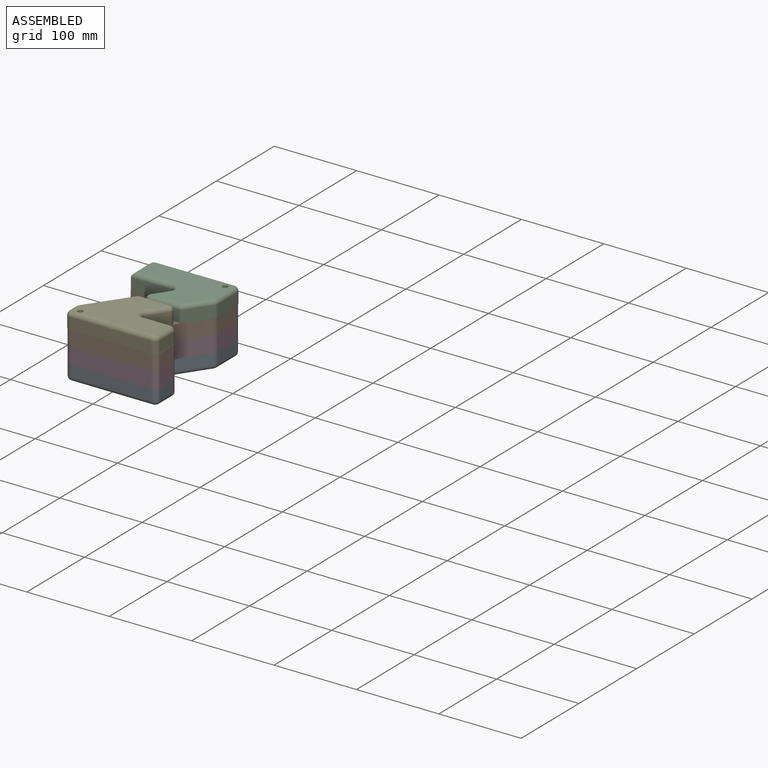
[diagram: assembled view]
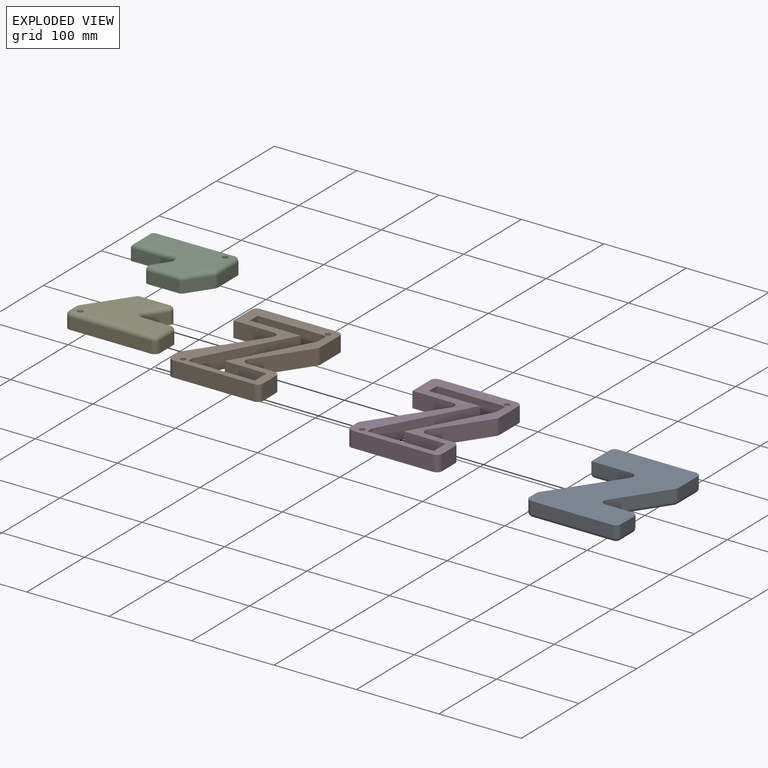
[diagram: exploded view]
GUIDED TOUR — MATED ASSEMBLY (Onshape document b6bfaa9dc01e8448dd5dc00b, AutoMate assembly b6bfaa9dc01e8448dd5dc00b_bda568567a9e28a64f743e2d_ed5f7a123516ab2636de5dbc_default)

This assembly has 5 components, labeled P0..P4 below (a component is one placed occurrence of a part; the same part can appear more than once), held together by 4 mates. A mate is a constraint between two components; its type names the relative motion it leaves free:
  FASTENED — locks the two components together rigidly (no relative motion),
  REVOLUTE — leaves rotation about the listed axis free (a hinge).
Axis/direction vectors are unit vectors and 'through' points are millimeter coordinates, both in the assembly's world frame.

MATES
  1. FASTENED "Fastened 2": P3 <-> P1, direction (1.000, 0.000, 0.000) through (4.86, -75.66, 22.21) mm
  2. FASTENED "Fastened 1": P0 <-> P3, direction (1.000, 0.000, 0.000) through (4.86, -75.66, 3.16) mm
  3. REVOLUTE "Revolute 2": P1 <-> P2, axis (0.000, 0.000, 1.000) through (46.89, 62.49, 41.26) mm
  4. REVOLUTE "Revolute 1": P1 <-> P4, axis (0.000, 0.000, 1.000) through (-37.71, -67.67, 41.26) mm

ASSEMBLY ORDER
  1. P4 — the base component [order verified]
  2. P2 [order verified]
  3. P1 [order verified]
  4. P3 [order verified]
  5. P0 [order verified]
Order-tag legend:
  [order verified] — this step's position reverses a verified removal order: the component was checked to insert without passing through the ones already placed.

Of the 5 components, 3 carry the full construction recipe — the FeatureScript program that regenerates the part's solid from scratch; the rest are supplied as boundary geometry only.
Each toured component is shown spotlighted twice — in the assembled view, then in the exploded view, where a leader line traces a displaced component back to its assembled socket (saturated green if recipe-attached, orange if geometry-only; every other component desaturated gray) — followed by its recipe or geometry summary and the mates that hold it.
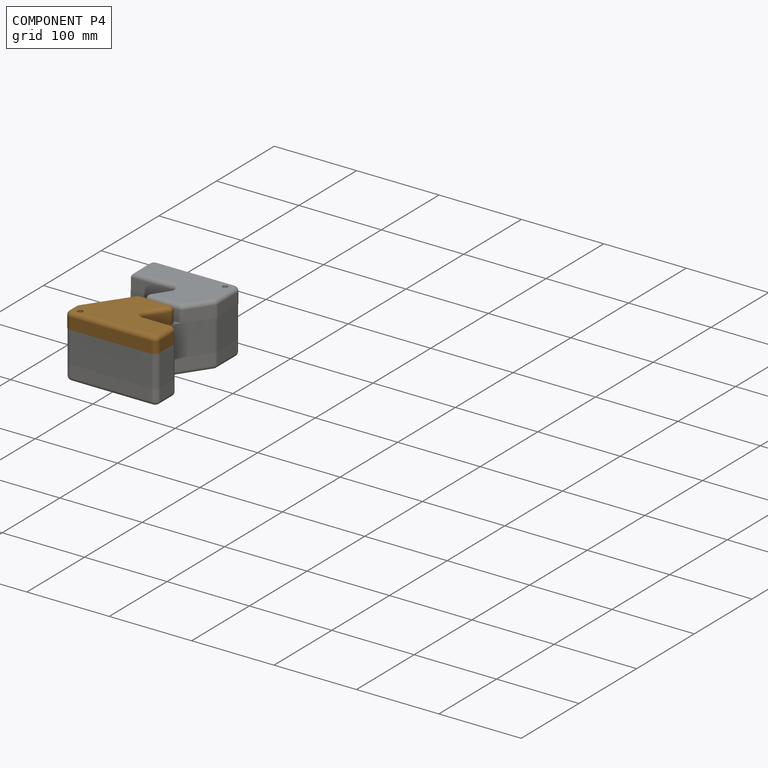
[diagram: component P4 — assembled]
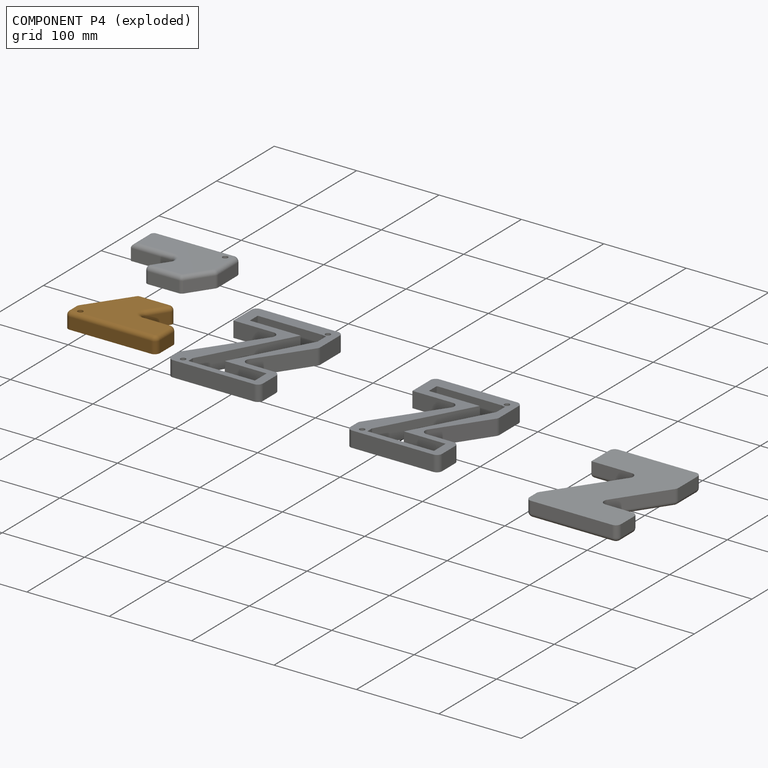
[diagram: component P4 — exploded]
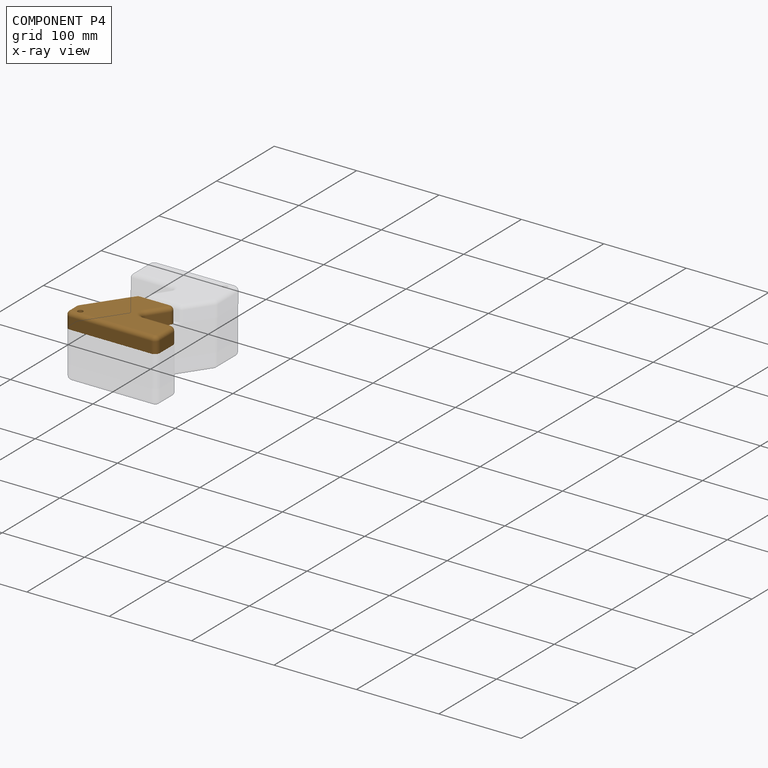
[diagram: component P4 — x-ray view]
COMPONENT P4 — geometry summary (no construction recipe available for this part):
  bounding box: 111.1 x 74.5 x 19.1 mm
  B-rep topology: 1 solid, 31 faces, 144 edges
  volume: 107297 mm^3 (68% of its bounding box)
Held by: REVOLUTE mate "Revolute 1" to P1.
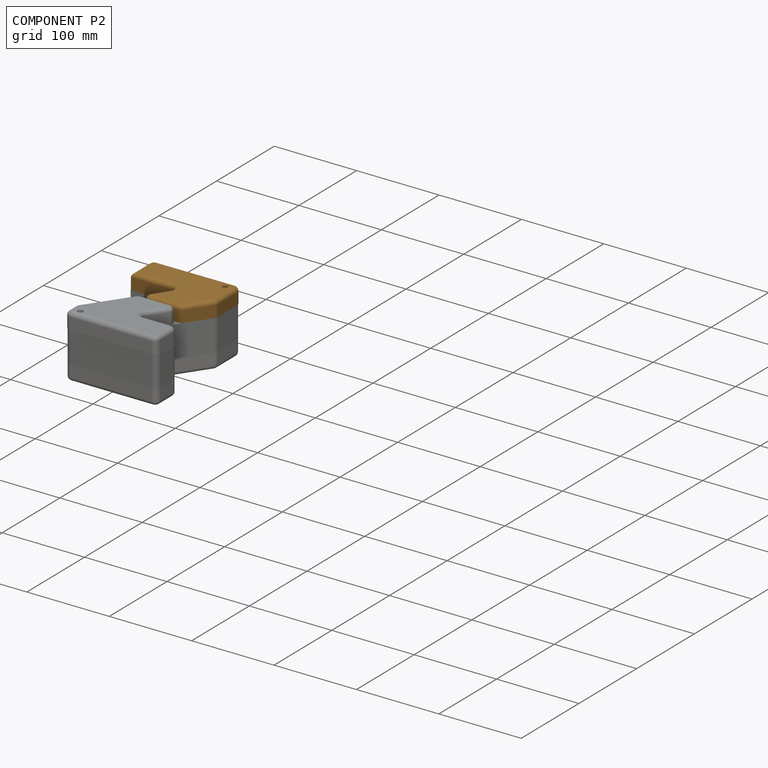
[diagram: component P2 — assembled]
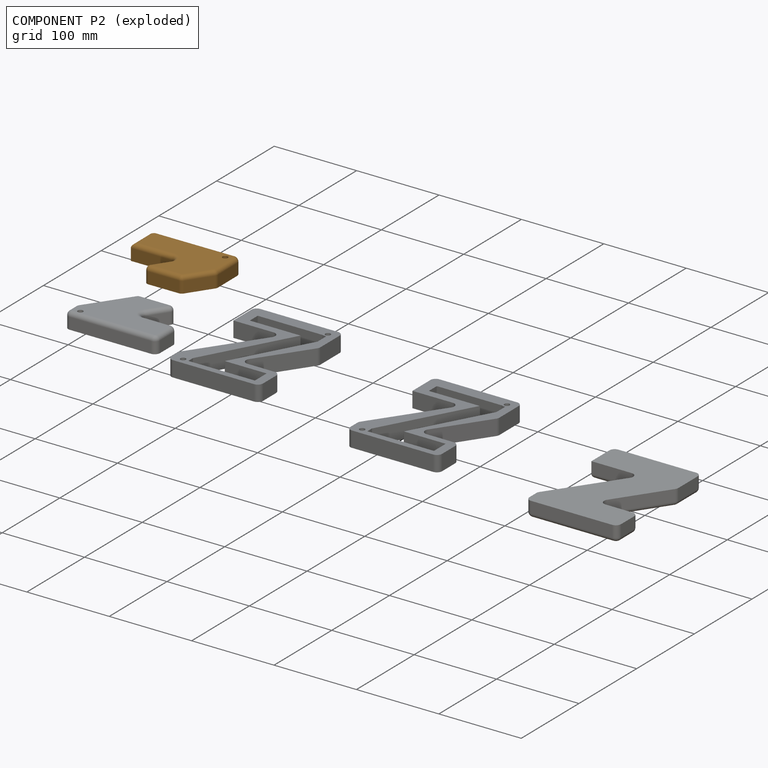
[diagram: component P2 — exploded]
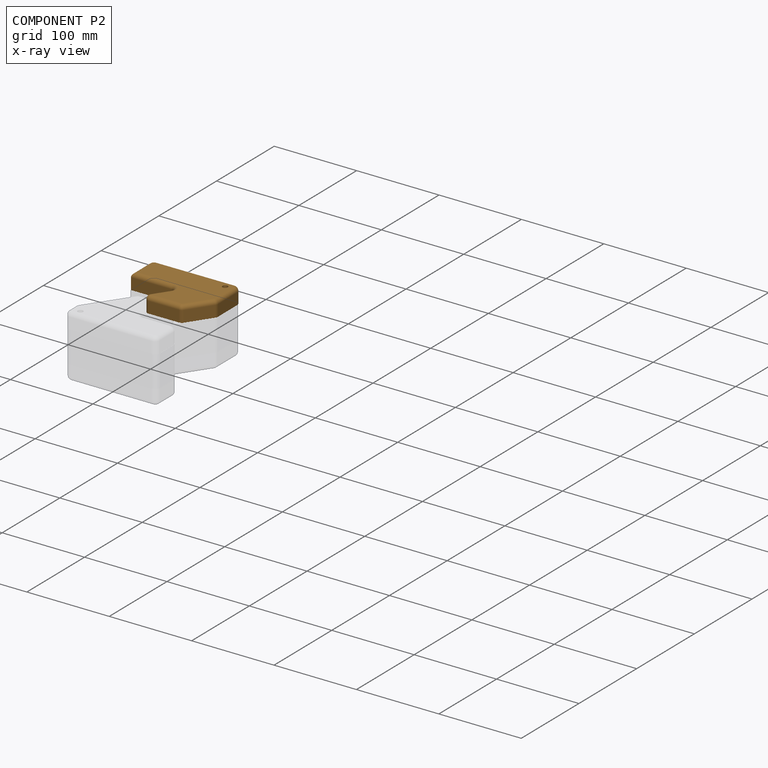
[diagram: component P2 — x-ray view]
COMPONENT P2 — geometry summary (no construction recipe available for this part):
  bounding box: 107.0 x 73.1 x 19.1 mm
  B-rep topology: 1 solid, 29 faces, 134 edges
  volume: 107091 mm^3 (72% of its bounding box)
Held by: REVOLUTE mate "Revolute 2" to P1.
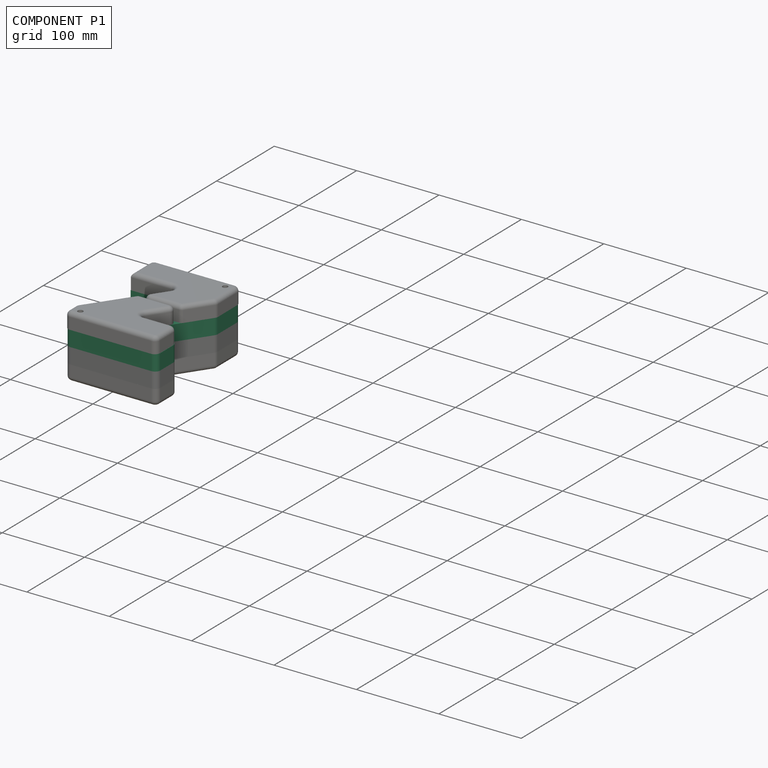
[diagram: component P1 — assembled]
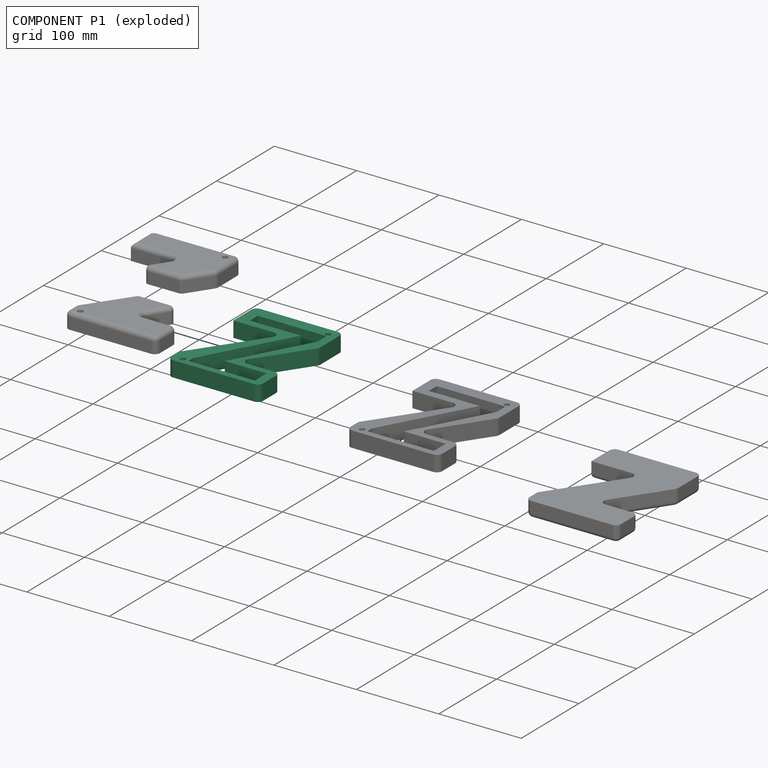
[diagram: component P1 — exploded]
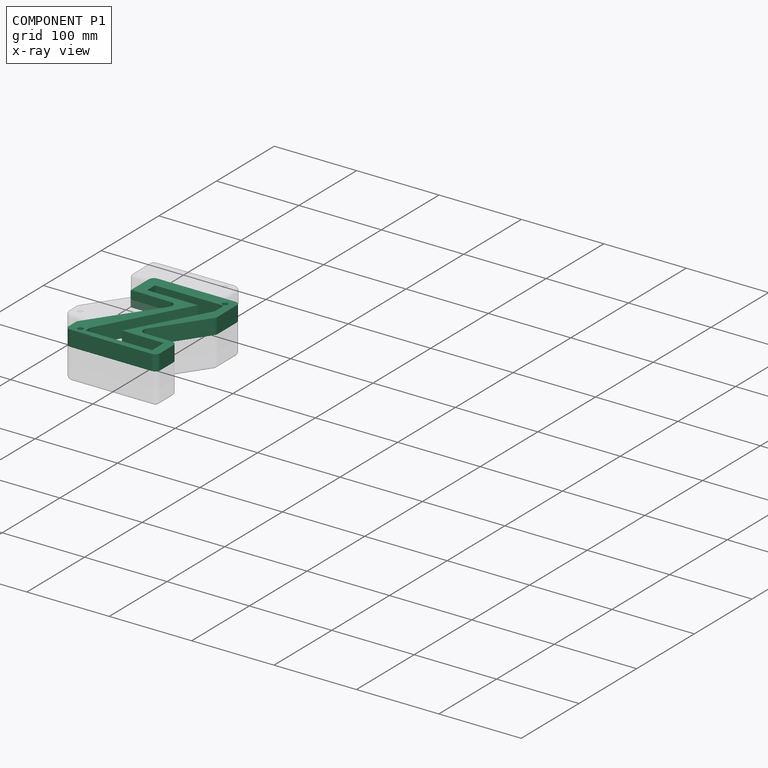
[diagram: component P1 — x-ray view]
COMPONENT P1 — recipe-attached (CADFS 00578789, mesh-verified: the recipe's output STEP matches this component's geometry to below the mesh-comparison resolution (tessellation chordal tolerance ~0.28 mm)).
Held by: FASTENED mate "Fastened 2" to P3; REVOLUTE mate "Revolute 2" to P2; REVOLUTE mate "Revolute 1" to P4.
Construction recipe (FeatureScript — the CAD program that rebuilds this solid; sketch coordinates are in the units given by the * unit suffixes, e.g. mm):

FeatureScript 1540;
import(path : "onshape/std/geometry.fs", version : "1540.0");
import(path : "onshape/std/common.fs", version : "1540.0");
const mm = millimeter;
const VERTEX = EntityType.VERTEX;
const EDGE = EntityType.EDGE;
const FACE = EntityType.FACE;
const BODY = EntityType.BODY;
function v(x, y){return vector(x, y);}
function OD(order){return orderDisambiguation(order);}
function OSD(set){return originalSetDisambiguation(set);}
function TD(topology){return topologyDisambiguation(topology);}
function TDD(query){return trueDependencyDisambiguation(query);}
function sQuery(a, b, c) {return sketchEntityQuery(a, b, c);}

annotation { "Feature Type Name" : "Feature", "Feature Type Description" : "" }
export const myFeature = defineFeature(function(context is Context, id is Id, definition is map)
    precondition{}
    {
        {
            var Q0;
            Q0=qCreatedBy(makeId("Top.planeOp"),FACE);
            var sketch = newSketch(context, id + "F0", { "sketchPlane" : qUnion([Q0])});
            skText(sketch, "E0", { "text": "Z", "fontName": "OpenSans-Bold.ttf"});
            skLineSegment(sketch, "E1", {"start": v(-54.55, 77.63) * mm, "end": v(-54.55, 38.1) * mm});
            skLineSegment(sketch, "E2", {"start": v(-54.55, 38.1) * mm, "end": v(-5.8, 38.1) * mm});
            skLineSegment(sketch, "E3", {"start": v(-0.58, 28.14) * mm, "end": v(-55.35, -50.87) * mm});
            skLineSegment(sketch, "E4", {"start": v(-56.48, -54.49) * mm, "end": v(-56.48, -66.4) * mm});
            skLineSegment(sketch, "E5", {"start": v(-50.13, -72.75) * mm, "end": v(48.27, -72.75) * mm});
            skLineSegment(sketch, "E6", {"start": v(54.62, -66.4) * mm, "end": v(54.62, -43.67) * mm});
            skLineSegment(sketch, "E7", {"start": v(48.27, -37.32) * mm, "end": v(15.52, -37.32) * mm});
            skLineSegment(sketch, "E8", {"start": v(10.29, -27.38) * mm, "end": v(51.33, 32.37) * mm});
            skLineSegment(sketch, "E9", {"start": v(52.45, 35.97) * mm, "end": v(52.45, 69.35) * mm});
            skLineSegment(sketch, "E10", {"start": v(46.1, 75.7) * mm, "end": v(-48.2, 75.7) * mm});
            skLineSegment(sketch, "E11", {"start": v(-54.55, 69.35) * mm, "end": v(-54.55, 38.1) * mm});
            skPoint(sketch, "E12.visualSharp", {"position": v(-54.55, 75.7) * mm});
            skArc(sketch, "E12.filletArc", {"start": v(-48.2, 75.7) * mm, "mid": v(-52.7, 73.84) * mm, "end": v(-54.55, 69.35) * mm});
            skPoint(sketch, "E13.visualSharp", {"position": v(6.33, 38.1) * mm});
            skArc(sketch, "E13.filletArc", {"start": v(-0.58, 28.14) * mm, "mid": v(-0.17, 34.7) * mm, "end": v(-5.8, 38.1) * mm});
            skPoint(sketch, "E14.visualSharp", {"position": v(-56.48, -52.5) * mm});
            skArc(sketch, "E14.filletArc", {"start": v(-55.35, -50.87) * mm, "mid": v(-56.2, -52.6) * mm, "end": v(-56.48, -54.49) * mm});
            skPoint(sketch, "E15.visualSharp", {"position": v(-56.48, -72.75) * mm});
            skArc(sketch, "E15.filletArc", {"start": v(-56.48, -66.4) * mm, "mid": v(-54.62, -70.89) * mm, "end": v(-50.13, -72.75) * mm});
            skPoint(sketch, "E16.visualSharp", {"position": v(54.62, -72.75) * mm});
            skArc(sketch, "E16.filletArc", {"start": v(48.27, -72.75) * mm, "mid": v(52.76, -70.89) * mm, "end": v(54.62, -66.4) * mm});
            skPoint(sketch, "E17.visualSharp", {"position": v(54.62, -37.32) * mm});
            skArc(sketch, "E17.filletArc", {"start": v(54.62, -43.67) * mm, "mid": v(52.76, -39.18) * mm, "end": v(48.27, -37.32) * mm});
            skPoint(sketch, "E18.visualSharp", {"position": v(3.46, -37.32) * mm});
            skArc(sketch, "E18.filletArc", {"start": v(10.29, -27.38) * mm, "mid": v(9.9, -33.93) * mm, "end": v(15.52, -37.32) * mm});
            skPoint(sketch, "E19.visualSharp", {"position": v(52.45, 34) * mm});
            skArc(sketch, "E19.filletArc", {"start": v(51.33, 32.37) * mm, "mid": v(52.16, 34.09) * mm, "end": v(52.45, 35.97) * mm});
            skPoint(sketch, "E20.visualSharp", {"position": v(52.45, 75.7) * mm});
            skArc(sketch, "E20.filletArc", {"start": v(52.45, 69.35) * mm, "mid": v(50.59, 73.84) * mm, "end": v(46.1, 75.7) * mm});
            skLineSegment(sketch, "E21", {"start": v(-54.55, 75.7) * mm, "end": v(-54.55, 38.1) * mm});
            const initialGuessF0  = {"E0": [-0.06154, -0.07275, 1, 0, 0.15038]};
            skSetInitialGuess(sketch, initialGuessF0);
            skSolve(sketch);
        }
        {
            var Q0;
            {var subQ5=sQuery(id+"F0.wireOp",EDGE,"E2");Q0=makeQuery(id+"F0.imprint","IMPRINT",FACE,{"disambiguationData":[TD([[makeQuery(id+"F0.imprint","IMPRINT",EDGE,{"derivedFrom":subQ5}),1.0]])]});}
            var Q1;
            {var subQ6=sQuery(id+"F0.wireOp",EDGE,"E0.sketch_text.stroke-8");Q1=makeQuery(id+"F0.imprint","IMPRINT",FACE,{"disambiguationData":[TD([[makeQuery(id+"F0.imprint","IMPRINT",EDGE,{"derivedFrom":subQ6}),-1.0]])]});}
            var Q2;
            {var subQ0=sQuery(id+"F0.wireOp",EDGE,"E0.sketch_text.stroke-8");Q2=makeQuery(id+"F0.imprint","IMPRINT",FACE,{"disambiguationData":[TD([[makeQuery(id+"F0.imprint","IMPRINT",EDGE,{"derivedFrom":subQ0}),1.0]])]});}
            extrude(context, id + "F1", {"entities" : qUnion([Q0, Q1, Q2]), "depth" : 19.05 * mm, "offsetDistance" : 25.4 * mm});
        }
        {
            var Q0;
            Q0=makeQuery(id+"F1.opExtrude","CAP_FACE",FACE,{"disambiguationData":[OSD([sQuery(id+"F0.wireOp",EDGE,"E2"),sQuery(id+"F0.wireOp",EDGE,"E3"),sQuery(id+"F0.wireOp",EDGE,"E4"),sQuery(id+"F0.wireOp",EDGE,"E5"),sQuery(id+"F0.wireOp",EDGE,"E6"),sQuery(id+"F0.wireOp",EDGE,"E7"),sQuery(id+"F0.wireOp",EDGE,"E8"),sQuery(id+"F0.wireOp",EDGE,"E9"),sQuery(id+"F0.wireOp",EDGE,"E10"),sQuery(id+"F0.wireOp",EDGE,"E12.filletArc"),sQuery(id+"F0.wireOp",EDGE,"E13.filletArc"),sQuery(id+"F0.wireOp",EDGE,"E14.filletArc"),sQuery(id+"F0.wireOp",EDGE,"E15.filletArc"),sQuery(id+"F0.wireOp",EDGE,"E16.filletArc"),sQuery(id+"F0.wireOp",EDGE,"E17.filletArc"),sQuery(id+"F0.wireOp",EDGE,"E18.filletArc"),sQuery(id+"F0.wireOp",EDGE,"E19.filletArc"),sQuery(id+"F0.wireOp",EDGE,"E20.filletArc"),sQuery(id+"F0.wireOp",EDGE,"E21")])],"isStart":false});
            var sketch = newSketch(context, id + "F2", { "sketchPlane" : qUnion([Q0])});
            skLineSegment(sketch, "E22", {"start": v(-54.62, -70.89) * mm, "end": v(-43.5, -64.75) * mm});
            skLineSegment(sketch, "E23", {"start": v(50.59, 73.84) * mm, "end": v(41.1, 65.4) * mm});
            skCircle(sketch, "E24", {"center": v(41.1, 65.4) * mm, "radius": 3.17 * mm});
            skCircle(sketch, "E25", {"center": v(-43.5, -64.75) * mm, "radius": 3.18 * mm});
            skSolve(sketch);
        }
        {
            var Q0;
            Q0=makeQuery(id+"F2.imprint","IMPRINT",FACE,{"disambiguationData":[TD([[makeQuery(id+"F2.imprint","IMPRINT",EDGE,{"derivedFrom":sQuery(id+"F2.wireOp",EDGE,"E24")}),1.0]])]});
            var Q1;
            Q1=makeQuery(id+"F2.imprint","IMPRINT",FACE,{"disambiguationData":[TD([[makeQuery(id+"F2.imprint","IMPRINT",EDGE,{"derivedFrom":sQuery(id+"F2.wireOp",EDGE,"E25")}),1.0]])]});
            extrude(context, id + "F3", {"entities" : qUnion([Q0, Q1]), "operationType" : NewBodyOperationType.REMOVE, "oppositeDirection" : true, "depth" : 25.4 * mm, "offsetDistance" : 25.4 * mm});
        }
        {
            var Q0;
            Q0=makeQuery(id+"F1.opExtrude","CAP_FACE",FACE,{"disambiguationData":[OSD([sQuery(id+"F0.wireOp",EDGE,"E2"),sQuery(id+"F0.wireOp",EDGE,"E3"),sQuery(id+"F0.wireOp",EDGE,"E4"),sQuery(id+"F0.wireOp",EDGE,"E5"),sQuery(id+"F0.wireOp",EDGE,"E6"),sQuery(id+"F0.wireOp",EDGE,"E7"),sQuery(id+"F0.wireOp",EDGE,"E8"),sQuery(id+"F0.wireOp",EDGE,"E9"),sQuery(id+"F0.wireOp",EDGE,"E10"),sQuery(id+"F0.wireOp",EDGE,"E12.filletArc"),sQuery(id+"F0.wireOp",EDGE,"E13.filletArc"),sQuery(id+"F0.wireOp",EDGE,"E14.filletArc"),sQuery(id+"F0.wireOp",EDGE,"E15.filletArc"),sQuery(id+"F0.wireOp",EDGE,"E16.filletArc"),sQuery(id+"F0.wireOp",EDGE,"E17.filletArc"),sQuery(id+"F0.wireOp",EDGE,"E18.filletArc"),sQuery(id+"F0.wireOp",EDGE,"E19.filletArc"),sQuery(id+"F0.wireOp",EDGE,"E20.filletArc"),sQuery(id+"F0.wireOp",EDGE,"E21")])],"isStart":false});
            var sketch = newSketch(context, id + "F4", { "sketchPlane" : qUnion([Q0])});
            skLineSegment(sketch, "E26", {"start": v(37, 61.1) * mm, "end": v(-41.09, 61.1) * mm});
            skLineSegment(sketch, "E27", {"start": v(-41.09, 61.1) * mm, "end": v(-41.09, 47.36) * mm});
            skLineSegment(sketch, "E28", {"start": v(-41.09, 47.36) * mm, "end": v(20.6, 47.36) * mm});
            skLineSegment(sketch, "E29", {"start": v(20.6, 47.36) * mm, "end": v(-36.75, -57.48) * mm});
            skLineSegment(sketch, "E30", {"start": v(-36.75, -57.48) * mm, "end": v(-36.75, -65.43) * mm});
            skLineSegment(sketch, "E31", {"start": v(-36.75, -65.43) * mm, "end": v(43.98, -65.43) * mm});
            skLineSegment(sketch, "E32", {"start": v(43.98, -65.43) * mm, "end": v(43.98, -44.95) * mm});
            skLineSegment(sketch, "E33", {"start": v(43.98, -44.95) * mm, "end": v(-6.87, -44.95) * mm});
            skLineSegment(sketch, "E34", {"start": v(-6.87, -44.95) * mm, "end": v(42.47, 45.22) * mm});
            skLineSegment(sketch, "E35", {"start": v(42.47, 45.22) * mm, "end": v(42.47, 60.13) * mm});
            skLineSegment(sketch, "E36", {"start": v(42.47, 60.13) * mm, "end": v(37, 61.1) * mm});
            skSolve(sketch);
        }
        {
            var Q0;
            Q0 = qSketchRegion(id + "F4", true);
            extrude(context, id + "F5", {"entities" : qUnion([Q0]), "operationType" : NewBodyOperationType.REMOVE, "endBound" : BoundingType.THROUGH_ALL, "oppositeDirection" : true, "depth" : 25.4 * mm, "offsetDistance" : 25.4 * mm});
        }
    });
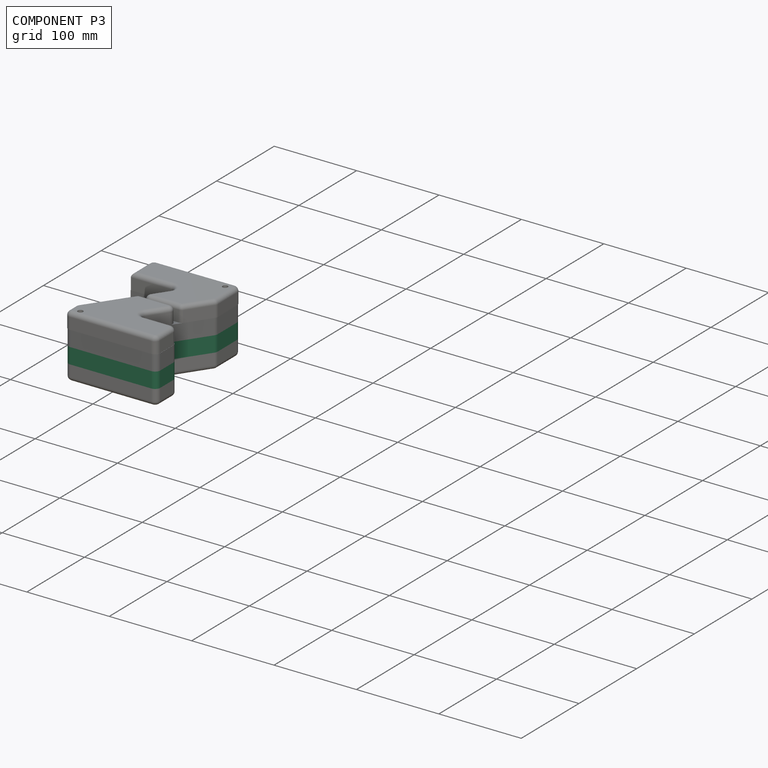
[diagram: component P3 — assembled]
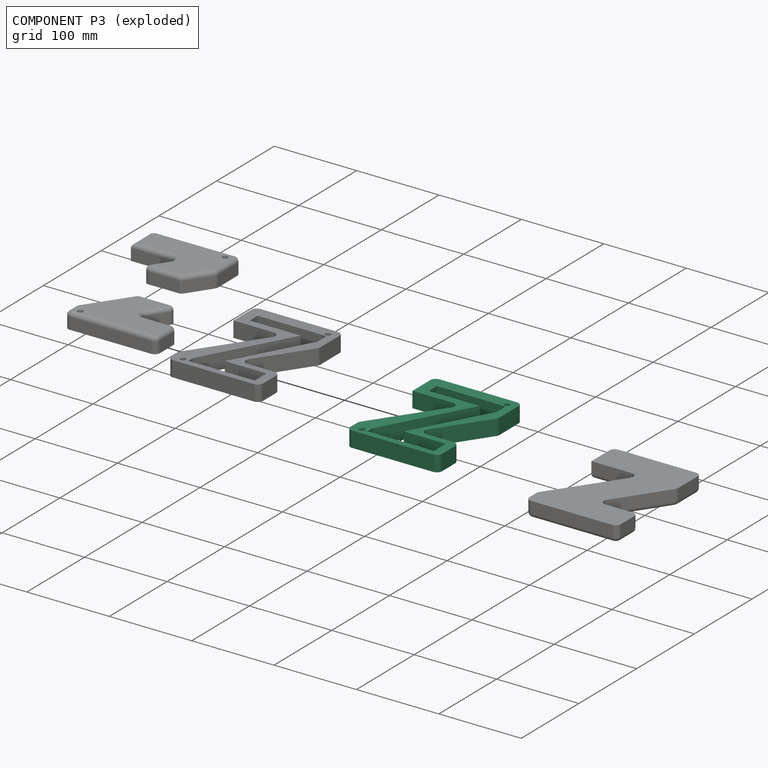
[diagram: component P3 — exploded]
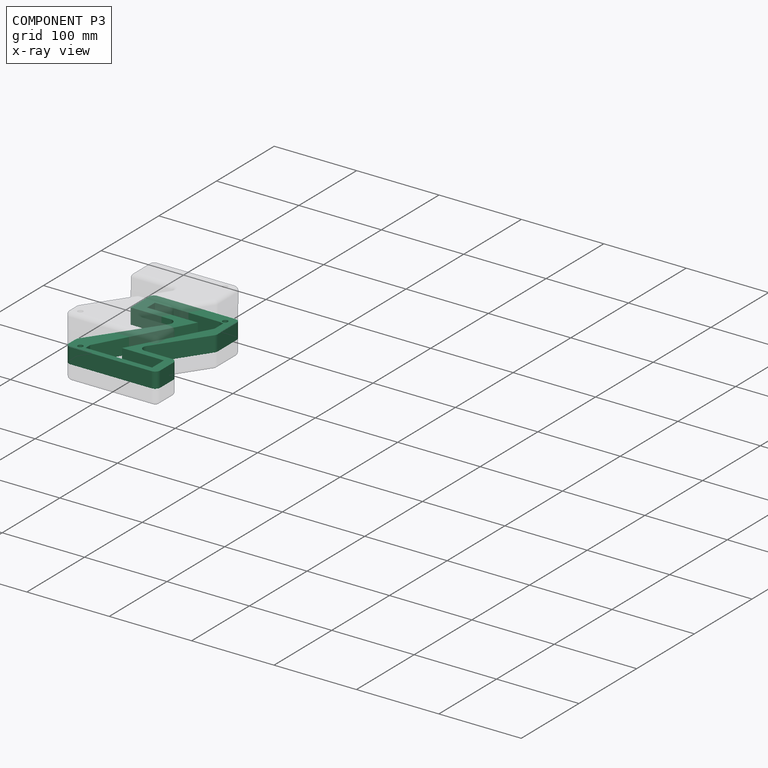
[diagram: component P3 — x-ray view]
COMPONENT P3 — same part as P1 (CADFS 00578789); its construction recipe is shown at P1.
Held by: FASTENED mate "Fastened 2" to P1; FASTENED mate "Fastened 1" to P0.
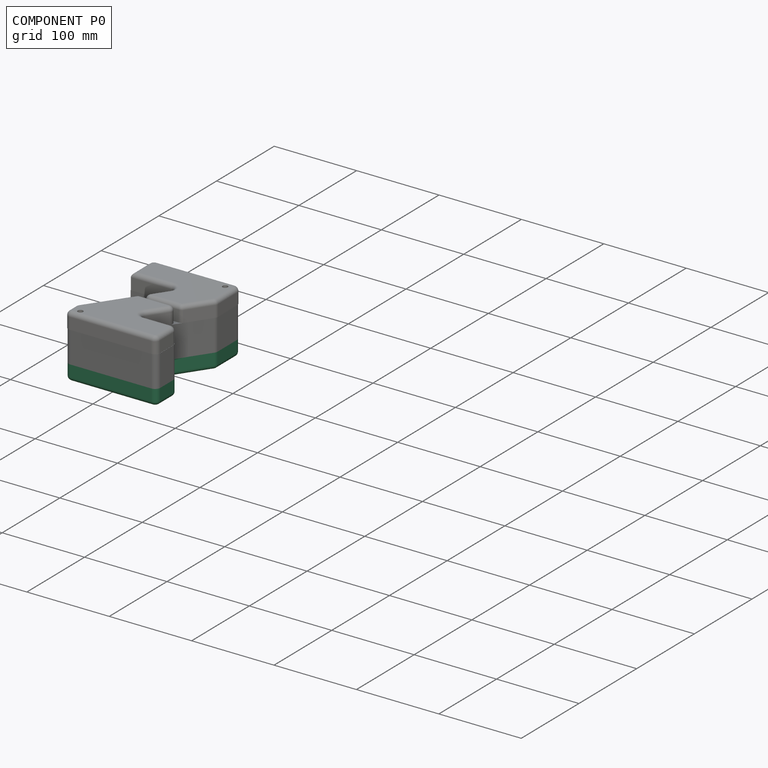
[diagram: component P0 — assembled]
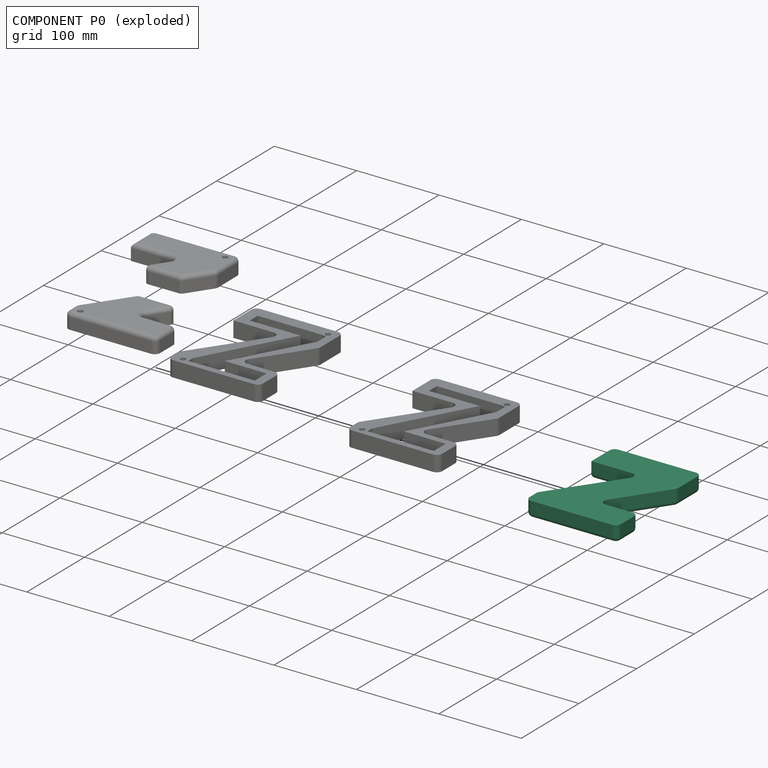
[diagram: component P0 — exploded]
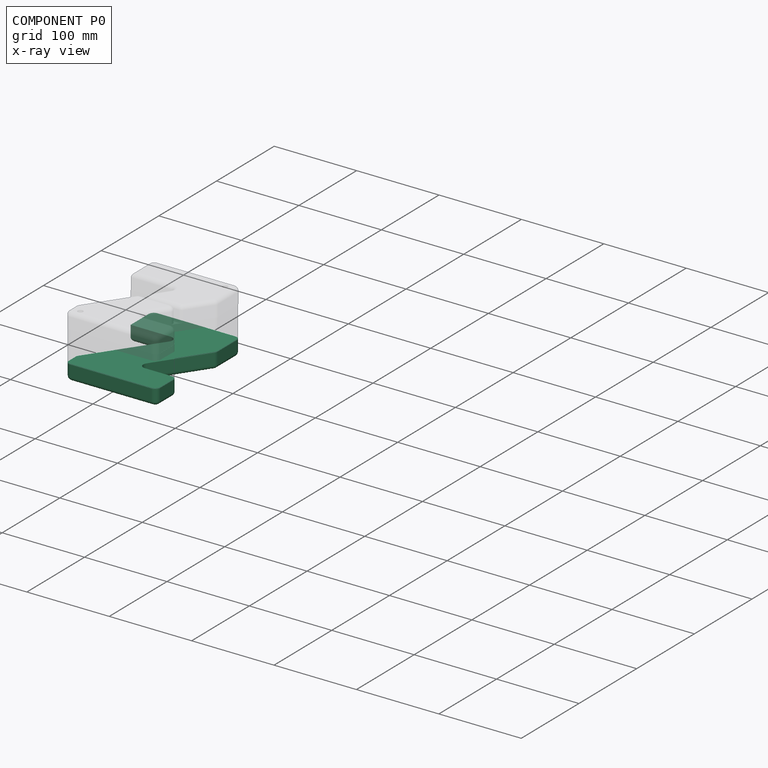
[diagram: component P0 — x-ray view]
COMPONENT P0 — recipe-attached (CADFS 00578794, mesh-verified: the recipe's output STEP matches this component's geometry to below the mesh-comparison resolution (tessellation chordal tolerance ~0.28 mm)).
Held by: FASTENED mate "Fastened 1" to P3.
Construction recipe (FeatureScript — the CAD program that rebuilds this solid; sketch coordinates are in the units given by the * unit suffixes, e.g. mm):

FeatureScript 1540;
import(path : "onshape/std/geometry.fs", version : "1540.0");
import(path : "onshape/std/common.fs", version : "1540.0");
const mm = millimeter;
const VERTEX = EntityType.VERTEX;
const EDGE = EntityType.EDGE;
const FACE = EntityType.FACE;
const BODY = EntityType.BODY;
function v(x, y){return vector(x, y);}
function OD(order){return orderDisambiguation(order);}
function OSD(set){return originalSetDisambiguation(set);}
function TD(topology){return topologyDisambiguation(topology);}
function TDD(query){return trueDependencyDisambiguation(query);}
function sQuery(a, b, c) {return sketchEntityQuery(a, b, c);}

annotation { "Feature Type Name" : "Feature", "Feature Type Description" : "" }
export const myFeature = defineFeature(function(context is Context, id is Id, definition is map)
    precondition{}
    {
        {
            var Q0;
            Q0=qCreatedBy(makeId("Top.planeOp"),FACE);
            var sketch = newSketch(context, id + "F0", { "sketchPlane" : qUnion([Q0])});
            skText(sketch, "E0", { "text": "Z", "fontName": "OpenSans-Bold.ttf"});
            skLineSegment(sketch, "E1", {"start": v(-54.55, 77.63) * mm, "end": v(-54.55, 38.1) * mm});
            skLineSegment(sketch, "E2", {"start": v(-54.55, 38.1) * mm, "end": v(-5.8, 38.1) * mm});
            skLineSegment(sketch, "E3", {"start": v(-0.58, 28.14) * mm, "end": v(-55.35, -50.87) * mm});
            skLineSegment(sketch, "E4", {"start": v(-56.48, -54.49) * mm, "end": v(-56.48, -66.4) * mm});
            skLineSegment(sketch, "E5", {"start": v(-50.13, -72.75) * mm, "end": v(48.27, -72.75) * mm});
            skLineSegment(sketch, "E6", {"start": v(54.62, -66.4) * mm, "end": v(54.62, -43.67) * mm});
            skLineSegment(sketch, "E7", {"start": v(48.27, -37.32) * mm, "end": v(15.52, -37.32) * mm});
            skLineSegment(sketch, "E8", {"start": v(10.29, -27.38) * mm, "end": v(51.33, 32.37) * mm});
            skLineSegment(sketch, "E9", {"start": v(52.45, 35.97) * mm, "end": v(52.45, 69.35) * mm});
            skLineSegment(sketch, "E10", {"start": v(46.1, 75.7) * mm, "end": v(-48.2, 75.7) * mm});
            skLineSegment(sketch, "E11", {"start": v(-54.55, 69.35) * mm, "end": v(-54.55, 38.1) * mm});
            skPoint(sketch, "E12.visualSharp", {"position": v(-54.55, 75.7) * mm});
            skArc(sketch, "E12.filletArc", {"start": v(-48.2, 75.7) * mm, "mid": v(-52.7, 73.84) * mm, "end": v(-54.55, 69.35) * mm});
            skPoint(sketch, "E13.visualSharp", {"position": v(6.33, 38.1) * mm});
            skArc(sketch, "E13.filletArc", {"start": v(-0.58, 28.14) * mm, "mid": v(-0.17, 34.7) * mm, "end": v(-5.8, 38.1) * mm});
            skPoint(sketch, "E14.visualSharp", {"position": v(-56.48, -52.5) * mm});
            skArc(sketch, "E14.filletArc", {"start": v(-55.35, -50.87) * mm, "mid": v(-56.2, -52.6) * mm, "end": v(-56.48, -54.49) * mm});
            skPoint(sketch, "E15.visualSharp", {"position": v(-56.48, -72.75) * mm});
            skArc(sketch, "E15.filletArc", {"start": v(-56.48, -66.4) * mm, "mid": v(-54.62, -70.89) * mm, "end": v(-50.13, -72.75) * mm});
            skPoint(sketch, "E16.visualSharp", {"position": v(54.62, -72.75) * mm});
            skArc(sketch, "E16.filletArc", {"start": v(48.27, -72.75) * mm, "mid": v(52.76, -70.89) * mm, "end": v(54.62, -66.4) * mm});
            skPoint(sketch, "E17.visualSharp", {"position": v(54.62, -37.32) * mm});
            skArc(sketch, "E17.filletArc", {"start": v(54.62, -43.67) * mm, "mid": v(52.76, -39.18) * mm, "end": v(48.27, -37.32) * mm});
            skPoint(sketch, "E18.visualSharp", {"position": v(3.46, -37.32) * mm});
            skArc(sketch, "E18.filletArc", {"start": v(10.29, -27.38) * mm, "mid": v(9.9, -33.93) * mm, "end": v(15.52, -37.32) * mm});
            skPoint(sketch, "E19.visualSharp", {"position": v(52.45, 34) * mm});
            skArc(sketch, "E19.filletArc", {"start": v(51.33, 32.37) * mm, "mid": v(52.16, 34.09) * mm, "end": v(52.45, 35.97) * mm});
            skPoint(sketch, "E20.visualSharp", {"position": v(52.45, 75.7) * mm});
            skArc(sketch, "E20.filletArc", {"start": v(52.45, 69.35) * mm, "mid": v(50.59, 73.84) * mm, "end": v(46.1, 75.7) * mm});
            skLineSegment(sketch, "E21", {"start": v(-54.55, 75.7) * mm, "end": v(-54.55, 38.1) * mm});
            const initialGuessF0  = {"E0": [-0.06154, -0.07275, 1, 0, 0.15038]};
            skSetInitialGuess(sketch, initialGuessF0);
            skSolve(sketch);
        }
        {
            var Q0;
            {var subQ5=sQuery(id+"F0.wireOp",EDGE,"E2");Q0=makeQuery(id+"F0.imprint","IMPRINT",FACE,{"disambiguationData":[TD([[makeQuery(id+"F0.imprint","IMPRINT",EDGE,{"derivedFrom":subQ5}),1.0]])]});}
            var Q1;
            {var subQ6=sQuery(id+"F0.wireOp",EDGE,"E0.sketch_text.stroke-8");Q1=makeQuery(id+"F0.imprint","IMPRINT",FACE,{"disambiguationData":[TD([[makeQuery(id+"F0.imprint","IMPRINT",EDGE,{"derivedFrom":subQ6}),-1.0]])]});}
            var Q2;
            {var subQ0=sQuery(id+"F0.wireOp",EDGE,"E0.sketch_text.stroke-8");Q2=makeQuery(id+"F0.imprint","IMPRINT",FACE,{"disambiguationData":[TD([[makeQuery(id+"F0.imprint","IMPRINT",EDGE,{"derivedFrom":subQ0}),1.0]])]});}
            extrude(context, id + "F1", {"entities" : qUnion([Q0, Q1, Q2]), "depth" : 19.05 * mm, "offsetDistance" : 25.4 * mm});
        }
        {
            var Q0;
            Q0=makeQuery(id+"F1.opExtrude","CAP_FACE",FACE,{"disambiguationData":[OSD([sQuery(id+"F0.wireOp",EDGE,"E2"),sQuery(id+"F0.wireOp",EDGE,"E3"),sQuery(id+"F0.wireOp",EDGE,"E4"),sQuery(id+"F0.wireOp",EDGE,"E5"),sQuery(id+"F0.wireOp",EDGE,"E6"),sQuery(id+"F0.wireOp",EDGE,"E7"),sQuery(id+"F0.wireOp",EDGE,"E8"),sQuery(id+"F0.wireOp",EDGE,"E9"),sQuery(id+"F0.wireOp",EDGE,"E10"),sQuery(id+"F0.wireOp",EDGE,"E12.filletArc"),sQuery(id+"F0.wireOp",EDGE,"E13.filletArc"),sQuery(id+"F0.wireOp",EDGE,"E14.filletArc"),sQuery(id+"F0.wireOp",EDGE,"E15.filletArc"),sQuery(id+"F0.wireOp",EDGE,"E16.filletArc"),sQuery(id+"F0.wireOp",EDGE,"E17.filletArc"),sQuery(id+"F0.wireOp",EDGE,"E18.filletArc"),sQuery(id+"F0.wireOp",EDGE,"E19.filletArc"),sQuery(id+"F0.wireOp",EDGE,"E20.filletArc"),sQuery(id+"F0.wireOp",EDGE,"E21")])],"isStart":true});
            fillet(context, id + "F2", {"entities" : qUnion([Q0]), "radius" : 5.08 * mm, "tangentPropagation" : true, "allowEdgeOverflow" : false});
        }
    });
PROVENANCE & LICENSES
Assembly (occurrences, transforms, mates, per-part STEP geometry): AutoMate dataset, Zenodo record 7776208, CC0.
Construction recipes: CADFS (HuggingFace VladPyatov/CADFS, CC-BY-4.0, layered over the ABC dataset), FeatureScript reconstruction programs keyed by ABC model id.
Join: ABC meta listings map ABC model id -> Onshape documentId; within a shared document, parts are matched by geometric signature (bounding-box dims + volume at 0.1% relative tolerance, exact B-rep face/solid counts).
Verification: 3 of this assembly's 5 components carry a recipe attachment, and every attachment is mesh-verified: the CADFS STEP and the AutoMate member STEP were compared as meshes in their shared local frame (symmetric sampled-point-to-mesh distance); worst across the 3 attachments: below the mesh-comparison resolution (tessellation chordal tolerance ~0.28 mm) on a 186 mm part.
Renders: orthographic iso camera (az 35 / el 25); the floor grid conveys scale (grid pitch printed in each image; no ruler). In the exploded view each component is displaced by its stored offset vector: the offsets alone carry the explosion direction (mate normal/axis signs are not orientation cues and do not encode it), and separation distances are assigned per mate-chain, not proportionally to assembly-order depth.
